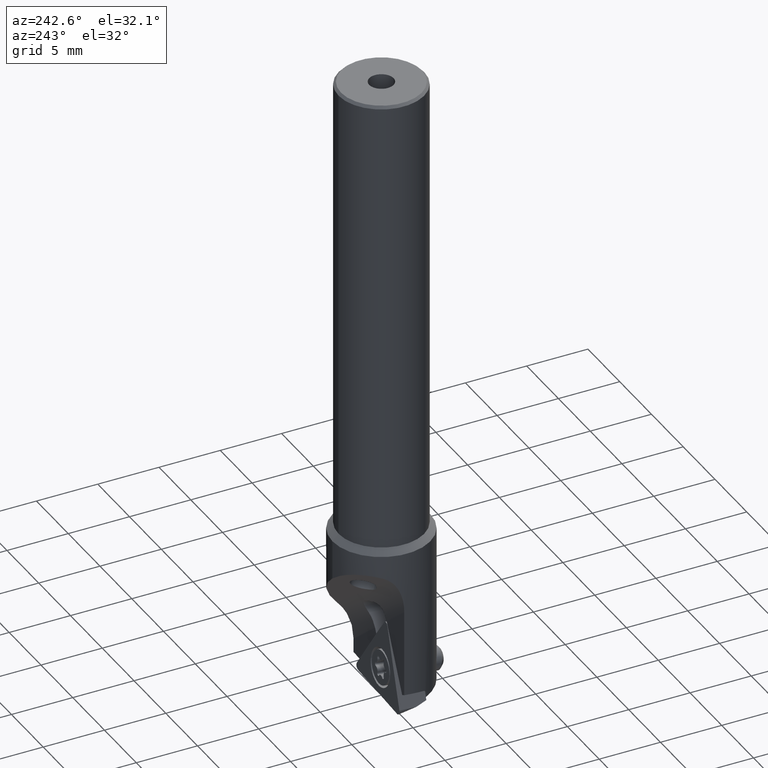
[diagram: clean part render]
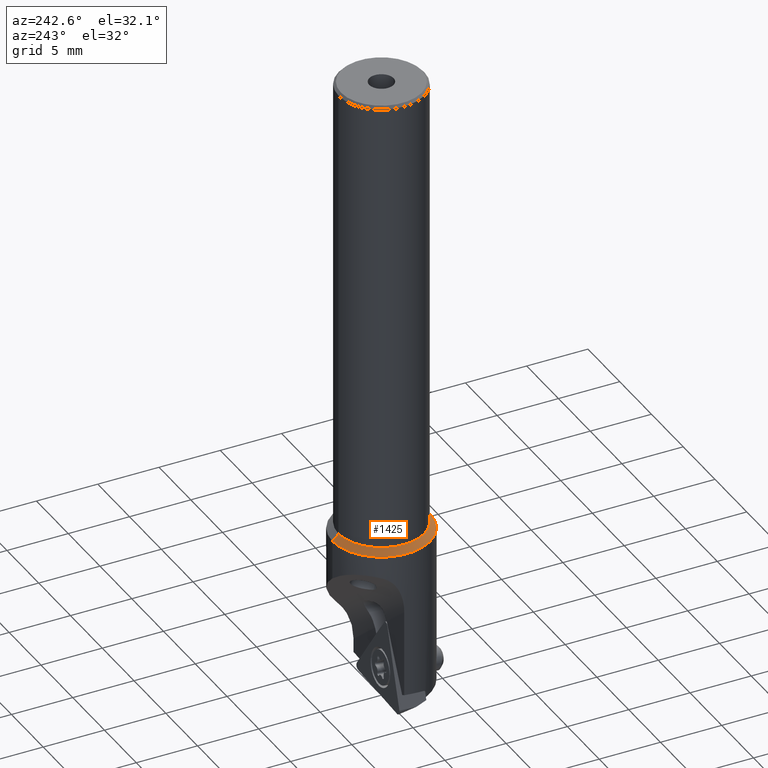
[diagram: same view with one face highlighted and labeled with its STEP entity id]
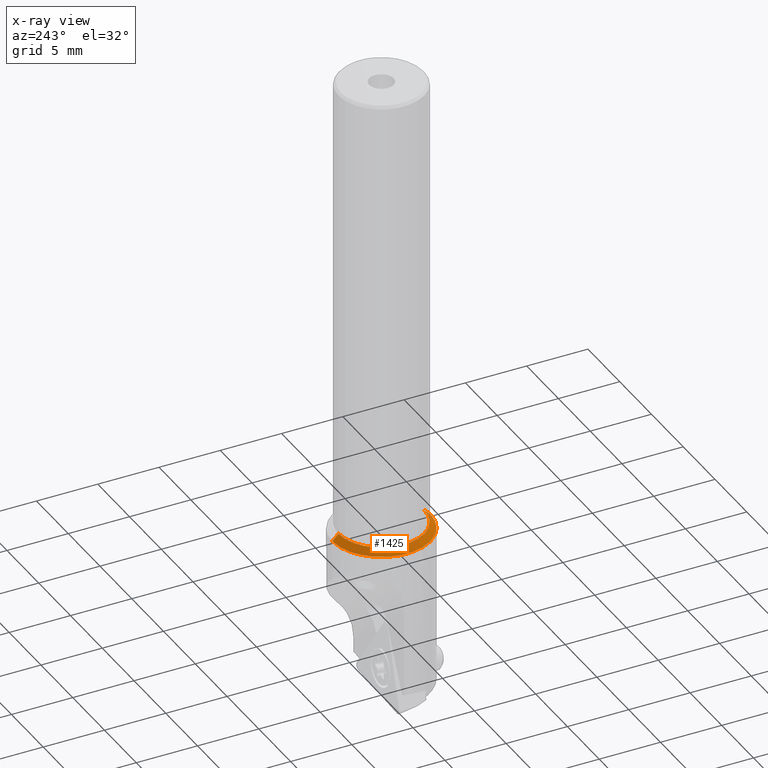
[diagram: x-ray of the same camera — body ghosted, the highlighted face saturated]
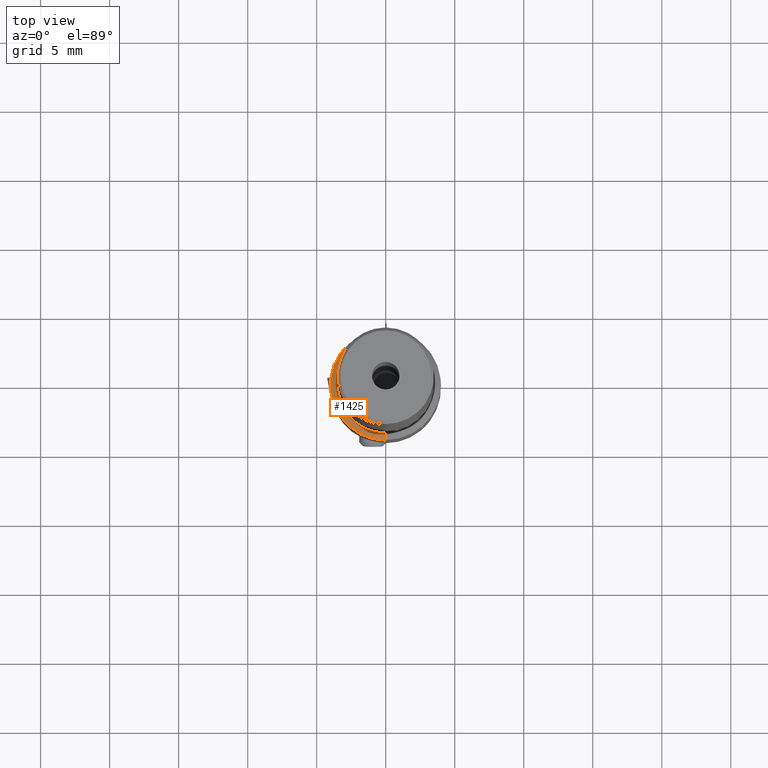
[diagram: same view with one face highlighted and labeled with its STEP entity id]
A machine part, auxiliary view. The second image highlights one B-rep face of the part: STEP entity #1425.
The next image is the same camera in x-ray: the body ghosted, the highlighted face saturated — about 0% of this face is hidden behind the body in this view.
A second angle (top view) of the same face is appended — the face is thin or edge-on in the first view.
In plain terms, the highlighted conical surface has half-angle 45 deg.
Its self-contained STEP definition (entity closure, byte-faithful):
#697=VERTEX_POINT('NONE',#1911);
#739=VERTEX_POINT('NONE',#1957);
#755=VERTEX_POINT('NONE',#1974);
#1175=EDGE_CURVE('NONE',#755,#1349,#2436,.T.);
#1207=EDGE_CURVE('NONE',#1349,#697,#2469,.T.);
#1349=VERTEX_POINT('NONE',#2633);
#1425=ADVANCED_FACE('NONE',(#2716),#2717,.T.);
#1645=EDGE_CURVE('NONE',#739,#755,#2963,.T.);
#1751=EDGE_CURVE('NONE',#739,#697,#3078,.T.);
#1911=CARTESIAN_POINT('',(0.0,-4.0,-3.5));
#1957=CARTESIAN_POINT('',(4.28626379701574E-016,-3.5,-3.0));
#1974=CARTESIAN_POINT('',(0.0,3.5,-3.0));
#2436=LINE('',#4104,#4105);
#2469=CIRCLE('',#4176,4.0);
#2633=CARTESIAN_POINT('',(4.89858719658941E-016,4.0,-3.5));
#2716=FACE_OUTER_BOUND('',#4547,.T.);
#2717=CONICAL_SURFACE('',#4548,3.5,0.78539816339745);
#2963=CIRCLE('',#4943,3.5);
#3078=LINE('',#5125,#5126);
#4104=CARTESIAN_POINT('',(0.0,3.5,-3.0));
#4105=VECTOR('',#5919,1000.0);
#4176=AXIS2_PLACEMENT_3D('',#5945,#5946,#5947);
#4547=EDGE_LOOP('',(#6276,#6277,#6278,#6279));
#4548=AXIS2_PLACEMENT_3D('',#6280,#6281,#6282);
#4943=AXIS2_PLACEMENT_3D('',#6576,#6577,#6578);
#5125=CARTESIAN_POINT('',(4.28626379701574E-016,-3.5,-3.0));
#5126=VECTOR('',#6697,1000.0);
#5919=DIRECTION('',(0.0,0.707106781186549,-0.707106781186546));
#5945=CARTESIAN_POINT('',(0.0,-1.94289029309402E-016,-3.5));
#5946=DIRECTION('',(0.0,5.55111512312578E-017,1.0));
#5947=DIRECTION('',(0.0,1.0,-5.55111512312578E-017));
#6276=ORIENTED_EDGE('',*,*,#1751,.F.);
#6277=ORIENTED_EDGE('',*,*,#1645,.T.);
#6278=ORIENTED_EDGE('',*,*,#1175,.T.);
#6279=ORIENTED_EDGE('',*,*,#1207,.T.);
#6280=CARTESIAN_POINT('',(0.0,-1.66533453693773E-016,-3.0));
#6281=DIRECTION('',(-0.0,-5.55111512312578E-017,-1.0));
#6282=DIRECTION('',(0.0,1.0,-5.55111512312578E-017));
#6576=CARTESIAN_POINT('',(0.0,-1.66533453693773E-016,-3.0));
#6577=DIRECTION('',(0.0,-5.55111512312578E-017,-1.0));
#6578=DIRECTION('',(0.0,1.0,-5.55111512312578E-017));
#6697=DIRECTION('',(8.65956056235495E-017,-0.707106781186549,-0.707106781186546));